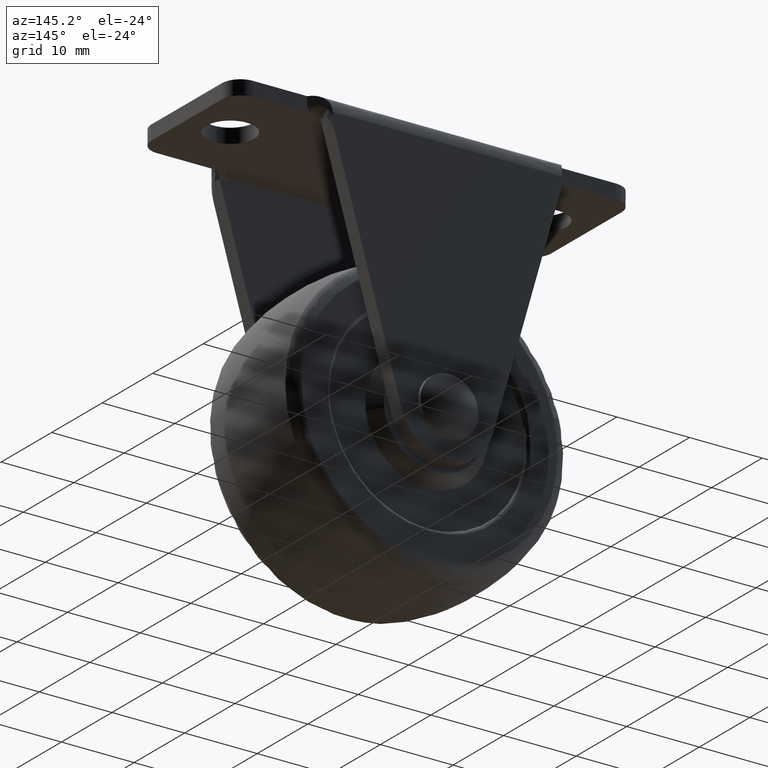
[diagram: clean part render]
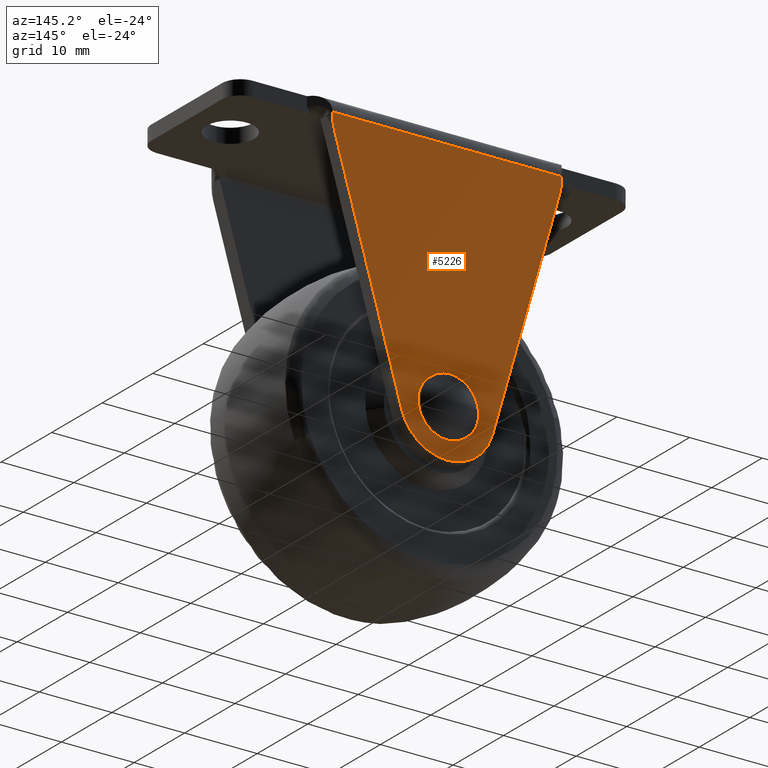
[diagram: same view with one face highlighted and labeled with its STEP entity id]
A machine part, auxiliary view. The second image highlights one B-rep face of the part: STEP entity #5226.
In plain terms, the highlighted face is a freeform B-spline surface patch.
Its self-contained STEP definition (entity closure, byte-faithful):
#2344=CARTESIAN_POINT('',(-2.990752001193020,12.0,-34.764622712733058));
#2345=VERTEX_POINT('',#2344);
#2351=CARTESIAN_POINT('',(0.0,12.0,-31.999999999999812));
#2352=VERTEX_POINT('',#2351);
#2353=CARTESIAN_POINT('',(0.0,12.0,-31.999999999999812));
#2354=CARTESIAN_POINT('',(-2.773171474819686,12.0,-31.999999999999808));
#2355=CARTESIAN_POINT('',(-2.990752001193021,11.999999999999998,-34.764622712733058));
#2363=(BOUNDED_CURVE()B_SPLINE_CURVE(2,(#2353,#2354,#2355),.UNSPECIFIED.,.F.,.U.)B_SPLINE_CURVE_WITH_KNOTS((3,3),(0.0,0.236331300623208),.UNSPECIFIED.)CURVE()GEOMETRIC_REPRESENTATION_ITEM()RATIONAL_B_SPLINE_CURVE((1.0,0.723120658616396,0.969723356151866))REPRESENTATION_ITEM(''));
#2364=EDGE_CURVE('',#2352,#2345,#2363,.T.);
#2366=CARTESIAN_POINT('',(2.990752001193020,12.0,-35.235377287266942));
#2367=VERTEX_POINT('',#2366);
#2368=CARTESIAN_POINT('',(2.990752001193020,11.999999999999996,-35.235377287266950));
#2369=CARTESIAN_POINT('',(3.000000000000200,12.000000000000002,-35.117870321106793));
#2370=CARTESIAN_POINT('',(3.000000000000200,12.0,-35.0));
#2371=CARTESIAN_POINT('',(3.000000000000200,12.0,-31.999999999999815));
#2372=CARTESIAN_POINT('',(0.0,12.0,-31.999999999999812));
#2380=(BOUNDED_CURVE()B_SPLINE_CURVE(2,(#2368,#2369,#2370,#2371,#2372),.UNSPECIFIED.,.F.,.U.)B_SPLINE_CURVE_WITH_KNOTS((3,2,3),(0.736331300623208,0.750000000000000,1.0),.UNSPECIFIED.)CURVE()GEOMETRIC_REPRESENTATION_ITEM()RATIONAL_B_SPLINE_CURVE((0.969723356151866,0.983986122570152,1.0,0.707106781186548,1.0))REPRESENTATION_ITEM(''));
#2381=EDGE_CURVE('',#2367,#2352,#2380,.T.);
#2457=CARTESIAN_POINT('',(0.0,12.0,-38.000000000000199));
#2458=VERTEX_POINT('',#2457);
#2459=CARTESIAN_POINT('',(0.0,12.0,-38.000000000000199));
#2460=CARTESIAN_POINT('',(2.773171474819677,12.0,-38.000000000000206));
#2461=CARTESIAN_POINT('',(2.990752001193021,12.000000000000004,-35.235377287266950));
#2469=(BOUNDED_CURVE()B_SPLINE_CURVE(2,(#2459,#2460,#2461),.UNSPECIFIED.,.F.,.U.)B_SPLINE_CURVE_WITH_KNOTS((3,3),(0.500000000000000,0.736331300623207),.UNSPECIFIED.)CURVE()GEOMETRIC_REPRESENTATION_ITEM()RATIONAL_B_SPLINE_CURVE((1.0,0.723120658616397,0.969723356151865))REPRESENTATION_ITEM(''));
#2470=EDGE_CURVE('',#2458,#2367,#2469,.T.);
#2472=CARTESIAN_POINT('',(-2.990752001193020,12.000000000000005,-34.764622712733058));
#2473=CARTESIAN_POINT('',(-3.000000000000200,12.000000000000002,-34.882129678893214));
#2474=CARTESIAN_POINT('',(-3.000000000000200,12.0,-35.0));
#2475=CARTESIAN_POINT('',(-3.000000000000200,12.0,-38.000000000000199));
#2476=CARTESIAN_POINT('',(0.0,12.0,-38.000000000000199));
#2484=(BOUNDED_CURVE()B_SPLINE_CURVE(2,(#2472,#2473,#2474,#2475,#2476),.UNSPECIFIED.,.F.,.U.)B_SPLINE_CURVE_WITH_KNOTS((3,2,3),(0.236331300623208,0.250000000000000,0.500000000000000),.UNSPECIFIED.)CURVE()GEOMETRIC_REPRESENTATION_ITEM()RATIONAL_B_SPLINE_CURVE((0.969723356151866,0.983986122570152,1.0,0.707106781186548,1.0))REPRESENTATION_ITEM(''));
#2485=EDGE_CURVE('',#2345,#2458,#2484,.T.);
#3509=CARTESIAN_POINT('',(-15.490419615570950,12.0,-4.642229161097580));
#3510=VERTEX_POINT('',#3509);
#3511=CARTESIAN_POINT('',(-15.750000000000000,12.0,-2.969574246615925));
#3512=VERTEX_POINT('',#3511);
#3513=CARTESIAN_POINT('',(-15.490419615570930,12.0,-4.642229161097607));
#3514=CARTESIAN_POINT('',(-15.749999999999714,11.999999999999996,-3.739268587415621));
#3515=CARTESIAN_POINT('',(-15.750000000000000,12.0,-2.969574246615925));
#3523=(BOUNDED_CURVE()B_SPLINE_CURVE(2,(#3513,#3514,#3515),.UNSPECIFIED.,.F.,.U.)CURVE()GEOMETRIC_REPRESENTATION_ITEM()QUASI_UNIFORM_CURVE()RATIONAL_B_SPLINE_CURVE((1.0,0.945342124084026,1.0))REPRESENTATION_ITEM(''));
#3524=EDGE_CURVE('',#3510,#3512,#3523,.T.);
#3688=CARTESIAN_POINT('',(15.490419608351649,12.0,-4.642228871819460));
#3689=VERTEX_POINT('',#3688);
#3695=CARTESIAN_POINT('',(15.750000000000000,12.0,-2.969574069637270));
#3696=VERTEX_POINT('',#3695);
#3697=CARTESIAN_POINT('',(15.749999999999970,12.0,-2.969574069637262));
#3698=CARTESIAN_POINT('',(15.749999999999982,11.999999999999996,-3.739268361881660));
#3699=CARTESIAN_POINT('',(15.490419608351649,12.0,-4.642228871819460));
#3707=(BOUNDED_CURVE()B_SPLINE_CURVE(2,(#3697,#3698,#3699),.UNSPECIFIED.,.F.,.U.)CURVE()GEOMETRIC_REPRESENTATION_ITEM()QUASI_UNIFORM_CURVE()RATIONAL_B_SPLINE_CURVE((1.0,0.945342122519892,1.0))REPRESENTATION_ITEM(''));
#3708=EDGE_CURVE('',#3696,#3689,#3707,.T.);
#3857=CARTESIAN_POINT('',(15.750000000000000,12.0,-2.399999999999960));
#3858=VERTEX_POINT('',#3857);
#3898=CARTESIAN_POINT('',(-15.750000000000000,12.0,-2.399999999999960));
#3899=VERTEX_POINT('',#3898);
#3900=CARTESIAN_POINT('',(-15.750000000000000,12.0,-2.399999999999960));
#3901=CARTESIAN_POINT('',(-10.500000000000099,12.0,-2.400000000000000));
#3902=CARTESIAN_POINT('',(-5.250000000000001,12.0,-2.400000000000000));
#3903=CARTESIAN_POINT('',(9.714451E-014,12.0,-2.400000000000000));
#3904=CARTESIAN_POINT('',(5.250000000000060,12.0,-2.400000000000000));
#3905=CARTESIAN_POINT('',(10.500000000000000,12.0,-2.400000000000000));
#3906=CARTESIAN_POINT('',(15.750000000000000,12.0,-2.399999999999960));
#3907=B_SPLINE_CURVE_WITH_KNOTS('',3,(#3900,#3901,#3902,#3903,#3904,#3905,#3906),.UNSPECIFIED.,.F.,.U.,(4,3,4),(0.409638554216866,0.500000000000000,0.590361445783132),.UNSPECIFIED.);
#3908=EDGE_CURVE('',#3899,#3858,#3907,.T.);
#4505=CARTESIAN_POINT('',(-6.246989151439200,12.0,-36.795865473212253));
#4506=VERTEX_POINT('',#4505);
#4507=CARTESIAN_POINT('',(-6.246989151439200,12.0,-36.795865473212253));
#4508=CARTESIAN_POINT('',(-15.490419615570950,12.0,-4.642229161097580));
#4509=QUASI_UNIFORM_CURVE('',1,(#4507,#4508),.UNSPECIFIED.,.F.,.U.);
#4510=EDGE_CURVE('',#4506,#3510,#4509,.T.);
#4533=CARTESIAN_POINT('',(6.246988000000100,12.0,-36.795865999999812));
#4534=VERTEX_POINT('',#4533);
#4535=CARTESIAN_POINT('',(15.490419608351649,12.0,-4.642228871819460));
#4536=CARTESIAN_POINT('',(6.246988000000100,12.0,-36.795865999999812));
#4537=QUASI_UNIFORM_CURVE('',1,(#4535,#4536),.UNSPECIFIED.,.F.,.U.);
#4538=EDGE_CURVE('',#3689,#4534,#4537,.T.);
#4577=CARTESIAN_POINT('',(-6.246989151439196,12.0,-36.795865473212253));
#4578=CARTESIAN_POINT('',(-4.894658793342986,11.999999999999998,-41.499999796155009));
#4579=CARTESIAN_POINT('',(-0.000000774061473,12.0,-41.500000002530051));
#4580=CARTESIAN_POINT('',(4.894657245220039,11.999999999999998,-41.500000208905092));
#4581=CARTESIAN_POINT('',(6.246988000000084,12.0,-36.795865999999812));
#4589=(BOUNDED_CURVE()B_SPLINE_CURVE(2,(#4577,#4578,#4579,#4580,#4581),.UNSPECIFIED.,.F.,.U.)B_SPLINE_CURVE_WITH_KNOTS((3,2,3),(0.0,0.500000000000000,1.0),.UNSPECIFIED.)CURVE()GEOMETRIC_REPRESENTATION_ITEM()RATIONAL_B_SPLINE_CURVE((1.0,0.798838856094171,1.0,0.798838856094171,1.0))REPRESENTATION_ITEM(''));
#4590=EDGE_CURVE('',#4506,#4534,#4589,.T.);
#5120=CARTESIAN_POINT('',(-15.750000000000000,12.0,-2.969574246615925));
#5121=CARTESIAN_POINT('',(-15.750000000000000,12.0,-2.399999999999960));
#5122=QUASI_UNIFORM_CURVE('',1,(#5120,#5121),.UNSPECIFIED.,.F.,.U.);
#5123=EDGE_CURVE('',#3512,#3899,#5122,.T.);
#5138=CARTESIAN_POINT('',(15.750000000000000,12.0,-2.969574069637270));
#5139=CARTESIAN_POINT('',(15.750000000000000,12.0,-2.399999999999960));
#5140=QUASI_UNIFORM_CURVE('',1,(#5138,#5139),.UNSPECIFIED.,.F.,.U.);
#5141=EDGE_CURVE('',#3696,#3858,#5140,.T.);
#5205=CARTESIAN_POINT('',(-17.323424938946889,12.0,-43.453044926873048));
#5206=CARTESIAN_POINT('',(-17.323424938946889,12.0,-0.446954026913246));
#5207=CARTESIAN_POINT('',(17.323425783842730,12.0,-43.453044926873048));
#5208=CARTESIAN_POINT('',(17.323425783842730,12.0,-0.446954026913246));
#5209=B_SPLINE_SURFACE_WITH_KNOTS('',1,1,((#5205,#5207),(#5206,#5208)),.UNSPECIFIED.,.F.,.F.,.U.,(2,2),(2,2),(0.0,43.006090899959801),(0.0,34.646850722789608),.UNSPECIFIED.);
#5210=ORIENTED_EDGE('',*,*,#5141,.F.);
#5211=ORIENTED_EDGE('',*,*,#3708,.T.);
#5212=ORIENTED_EDGE('',*,*,#4538,.T.);
#5213=ORIENTED_EDGE('',*,*,#4590,.F.);
#5214=ORIENTED_EDGE('',*,*,#4510,.T.);
#5215=ORIENTED_EDGE('',*,*,#3524,.T.);
#5216=ORIENTED_EDGE('',*,*,#5123,.T.);
#5217=ORIENTED_EDGE('',*,*,#3908,.T.);
#5218=EDGE_LOOP('',(#5210,#5211,#5212,#5213,#5214,#5215,#5216,#5217));
#5219=FACE_OUTER_BOUND('',#5218,.T.);
#5220=ORIENTED_EDGE('',*,*,#2470,.T.);
#5221=ORIENTED_EDGE('',*,*,#2381,.T.);
#5222=ORIENTED_EDGE('',*,*,#2364,.T.);
#5223=ORIENTED_EDGE('',*,*,#2485,.T.);
#5224=EDGE_LOOP('',(#5220,#5221,#5222,#5223));
#5225=FACE_BOUND('',#5224,.T.);
#5226=ADVANCED_FACE('',(#5219,#5225),#5209,.T.);